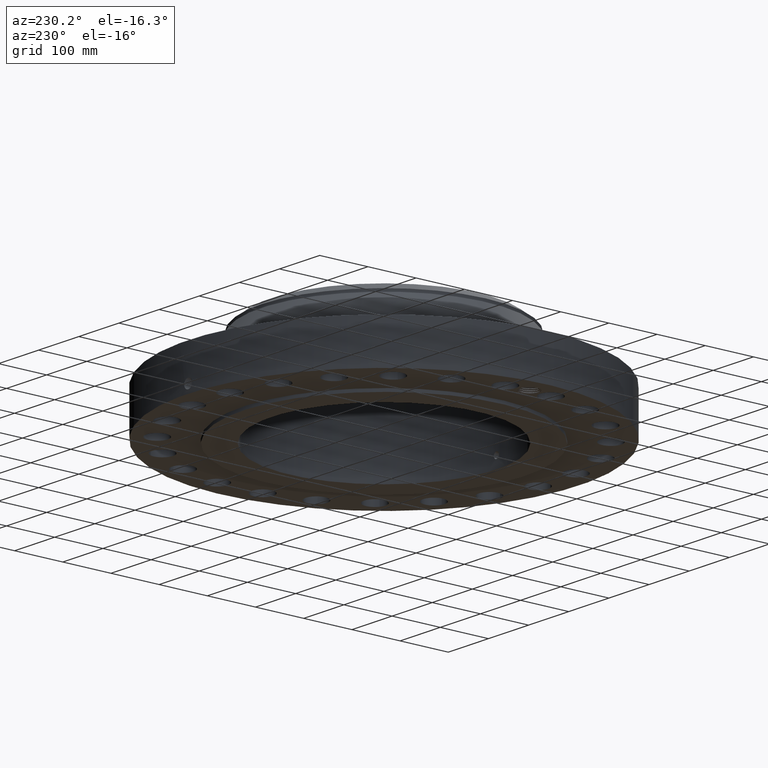
[diagram: clean part render]
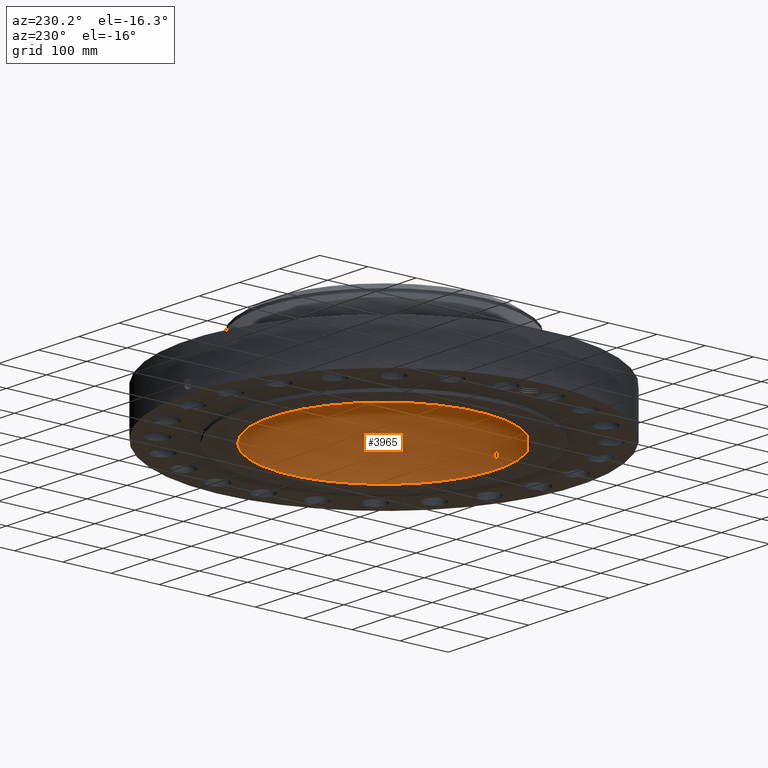
[diagram: same view with one face highlighted and labeled with its STEP entity id]
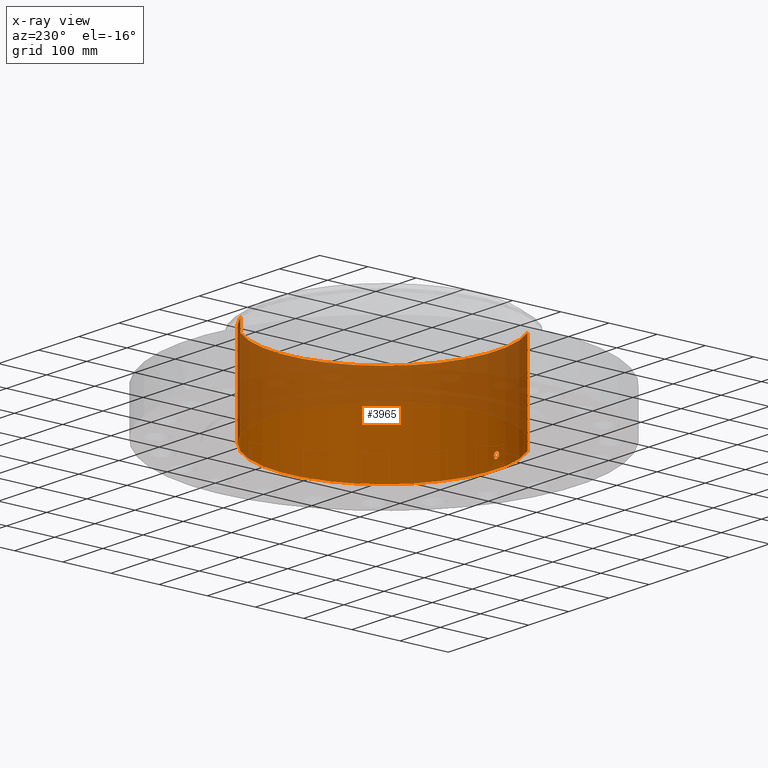
[diagram: x-ray of the same camera — body ghosted, the highlighted face saturated]
A machine part, auxiliary view. The second image highlights one B-rep face of the part: STEP entity #3965.
The next image is the same camera in x-ray: the body ghosted, the highlighted face saturated — about 45% of this face is hidden behind the body in this view.
In plain terms, the highlighted cylindrical surface (partial cylindrical patch) has radius 233.375 mm, axis along (0, 0, -1).
Its self-contained STEP definition (entity closure, byte-faithful):
#3166=AXIS2_PLACEMENT_3D('Circle Axis2P3D',#3164,#3165,$) ;
#3896=AXIS2_PLACEMENT_3D('Cylinder Axis2P3D',#3893,#3894,#3895) ;
#3900=AXIS2_PLACEMENT_3D('Circle Axis2P3D',#3898,#3899,$) ;
#3164=CARTESIAN_POINT('Axis2P3D Location',(0.,0.,0.)) ;
#3168=CARTESIAN_POINT('Vertex',(4.40496184871,8.06322857868,-6.48999664159E-014)) ;
#3170=CARTESIAN_POINT('Vertex',(-4.40496184871,-8.06322857868,-6.48999664159E-014)) ;
#3893=CARTESIAN_POINT('Axis2P3D Location',(0.,0.,3.87500000002)) ;
#3898=CARTESIAN_POINT('Axis2P3D Location',(0.,0.,7.75000000003)) ;
#3902=CARTESIAN_POINT('Vertex',(4.40496184871,8.06322857868,7.75000000003)) ;
#3904=CARTESIAN_POINT('Vertex',(-4.40496184871,-8.06322857868,7.75000000003)) ;
#3907=CARTESIAN_POINT('Line Origine',(4.40496184871,8.06322857868,3.87500000002)) ;
#3912=CARTESIAN_POINT('Line Origine',(-4.40496184871,-8.06322857868,3.87500000002)) ;
#3924=CARTESIAN_POINT('Control Point',(0.219395640473,-9.18538020735,0.820143615352)) ;
#3925=CARTESIAN_POINT('Control Point',(0.194442987075,-9.18597620918,0.774468089683)) ;
#3926=CARTESIAN_POINT('Control Point',(0.157605096162,-9.18677131345,0.73528818281)) ;
#3927=CARTESIAN_POINT('Control Point',(0.111107557809,-9.18754458944,0.70675672155)) ;
#3928=CARTESIAN_POINT('Control Point',(0.0336725378661,-9.18815982914,0.684117297769)) ;
#3929=CARTESIAN_POINT('Control Point',(-0.0446721778394,-9.18794721576,0.691943778496)) ;
#3930=CARTESIAN_POINT('Control Point',(-0.0703022473925,-9.1877821633,0.697956593169)) ;
#3931=CARTESIAN_POINT('Control Point',(-0.143958767463,-9.18705279408,0.725789345224)) ;
#3932=CARTESIAN_POINT('Control Point',(-0.203246602917,-9.18586227924,0.780505296107)) ;
#3933=CARTESIAN_POINT('Control Point',(-0.232211400204,-9.18508146425,0.826745407982)) ;
#3934=CARTESIAN_POINT('Control Point',(-0.255840806347,-9.1844396243,0.904891772737)) ;
#3935=CARTESIAN_POINT('Control Point',(-0.248282255271,-9.18464476708,0.984255435466)) ;
#3936=CARTESIAN_POINT('Control Point',(-0.2420484912,-9.18481640947,1.01081708363)) ;
#3937=CARTESIAN_POINT('Control Point',(-0.232315151848,-9.18507162084,1.03620737771)) ;
#3938=CARTESIAN_POINT('Control Point',(-0.219395640473,-9.18538020735,1.05985638466)) ;
#3939=CARTESIAN_POINT('Vertex',(0.219395640473,-9.18538020735,0.820143615352)) ;
#3941=CARTESIAN_POINT('Vertex',(-0.219395640473,-9.18538020735,1.05985638466)) ;
#3945=CARTESIAN_POINT('Control Point',(-0.219395640473,-9.18538020735,1.05985638466)) ;
#3946=CARTESIAN_POINT('Control Point',(-0.194442987067,-9.18597620918,1.10553191034)) ;
#3947=CARTESIAN_POINT('Control Point',(-0.157605096139,-9.18677131345,1.14471181722)) ;
#3948=CARTESIAN_POINT('Control Point',(-0.111107557848,-9.18754458944,1.17324327845)) ;
#3949=CARTESIAN_POINT('Control Point',(-0.0336725378847,-9.18815982914,1.19588270224)) ;
#3950=CARTESIAN_POINT('Control Point',(0.0446721778421,-9.18794721576,1.18805622151)) ;
#3951=CARTESIAN_POINT('Control Point',(0.0703022473779,-9.1877821633,1.18204340684)) ;
#3952=CARTESIAN_POINT('Control Point',(0.143958767511,-9.18705279408,1.15421065477)) ;
#3953=CARTESIAN_POINT('Control Point',(0.203246603003,-9.18586227924,1.09949470382)) ;
#3954=CARTESIAN_POINT('Control Point',(0.232211400166,-9.18508146425,1.05325459215)) ;
#3955=CARTESIAN_POINT('Control Point',(0.25584080634,-9.1844396243,0.975108227373)) ;
#3956=CARTESIAN_POINT('Control Point',(0.248282255279,-9.18464476708,0.895744564623)) ;
#3957=CARTESIAN_POINT('Control Point',(0.242048491173,-9.18481640947,0.869182916307)) ;
#3958=CARTESIAN_POINT('Control Point',(0.23231515183,-9.18507162084,0.843792622261)) ;
#3959=CARTESIAN_POINT('Control Point',(0.219395640473,-9.18538020735,0.820143615352)) ;
#3165=DIRECTION('Axis2P3D Direction',(0.,0.,-0.0393700787402)) ;
#3894=DIRECTION('Axis2P3D Direction',(0.,0.,-0.0393700787402)) ;
#3895=DIRECTION('Axis2P3D XDirection',(-0.0188750212049,-0.0345504945626,0.)) ;
#3899=DIRECTION('Axis2P3D Direction',(0.,0.,-0.0393700787402)) ;
#3908=DIRECTION('Vector Direction',(0.,0.,-0.0393700787402)) ;
#3913=DIRECTION('Vector Direction',(0.,0.,-0.0393700787402)) ;
#3909=VECTOR('Line Direction',#3908,0.0393700787402) ;
#3914=VECTOR('Line Direction',#3913,0.0393700787402) ;
#3918=ORIENTED_EDGE('',*,*,#3906,.F.) ;
#3919=ORIENTED_EDGE('',*,*,#3911,.T.) ;
#3920=ORIENTED_EDGE('',*,*,#3172,.T.) ;
#3921=ORIENTED_EDGE('',*,*,#3916,.F.) ;
#3962=ORIENTED_EDGE('',*,*,#3943,.F.) ;
#3963=ORIENTED_EDGE('',*,*,#3960,.F.) ;
#3964=FACE_BOUND('',#3961,.T.) ;
#3965=ADVANCED_FACE('PartBody',(#3922,#3964),#3897,.F.) ;
#3923=B_SPLINE_CURVE_WITH_KNOTS('',5,(#3924,#3925,#3926,#3927,#3928,#3929,#3930,#3931,#3932,#3933,#3934,#3935,#3936,#3937,#3938),.UNSPECIFIED.,.F.,.U.,(6,3,3,3,6),(0.,9.34851783402,14.0228942039,23.372932822,28.2132309886),.UNSPECIFIED.) ;
#3944=B_SPLINE_CURVE_WITH_KNOTS('',5,(#3945,#3946,#3947,#3948,#3949,#3950,#3951,#3952,#3953,#3954,#3955,#3956,#3957,#3958,#3959),.UNSPECIFIED.,.F.,.U.,(6,3,3,3,6),(0.,9.34851783698,14.0228942077,23.3729328365,28.2132309963),.UNSPECIFIED.) ;
#3167=CIRCLE('generated circle',#3166,9.18800000004) ;
#3901=CIRCLE('generated circle',#3900,9.18800000004) ;
#3897=CYLINDRICAL_SURFACE('generated cylinder',#3896,9.18800000004) ;
#3172=EDGE_CURVE('',#3169,#3171,#3167,.T.) ;
#3906=EDGE_CURVE('',#3903,#3905,#3901,.T.) ;
#3911=EDGE_CURVE('',#3903,#3169,#3910,.T.) ;
#3916=EDGE_CURVE('',#3905,#3171,#3915,.T.) ;
#3943=EDGE_CURVE('',#3940,#3942,#3923,.T.) ;
#3960=EDGE_CURVE('',#3942,#3940,#3944,.T.) ;
#3917=EDGE_LOOP('',(#3918,#3919,#3920,#3921)) ;
#3961=EDGE_LOOP('',(#3962,#3963)) ;
#3922=FACE_OUTER_BOUND('',#3917,.T.) ;
#3910=LINE('Line',#3907,#3909) ;
#3915=LINE('Line',#3912,#3914) ;
#3169=VERTEX_POINT('',#3168) ;
#3171=VERTEX_POINT('',#3170) ;
#3903=VERTEX_POINT('',#3902) ;
#3905=VERTEX_POINT('',#3904) ;
#3940=VERTEX_POINT('',#3939) ;
#3942=VERTEX_POINT('',#3941) ;